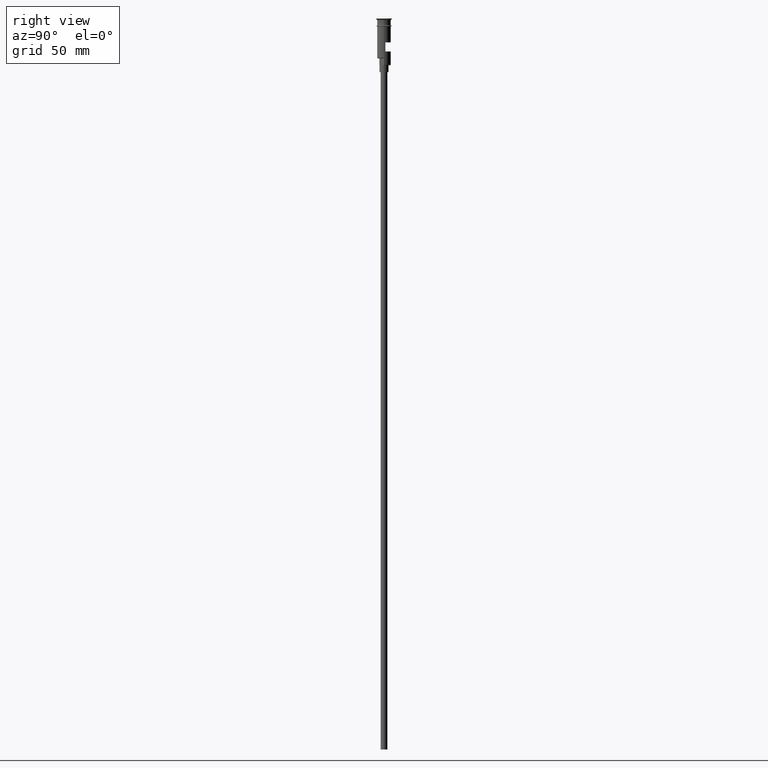
[diagram: clean part render]
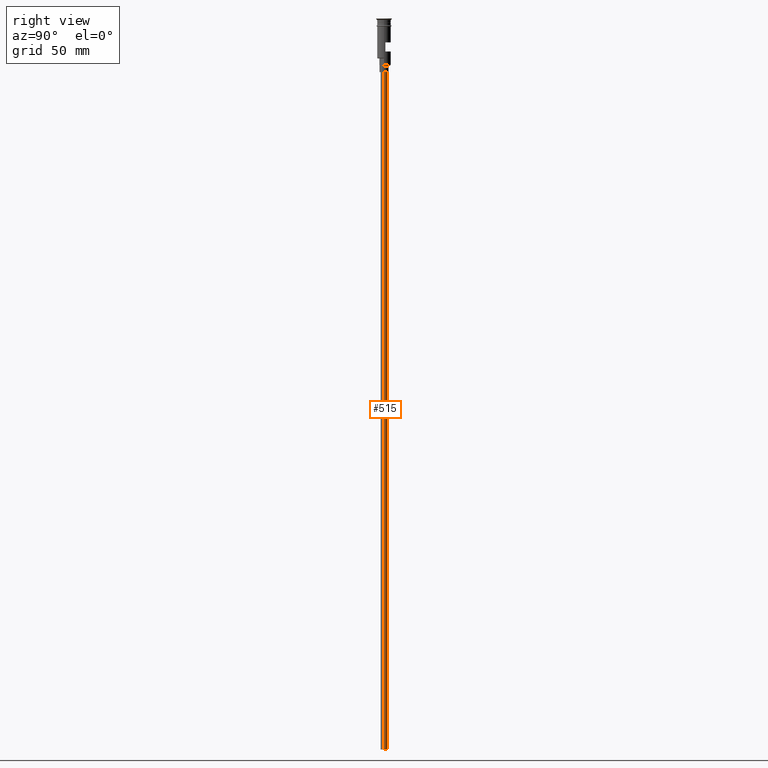
[diagram: same view with one face highlighted and labeled with its STEP entity id]
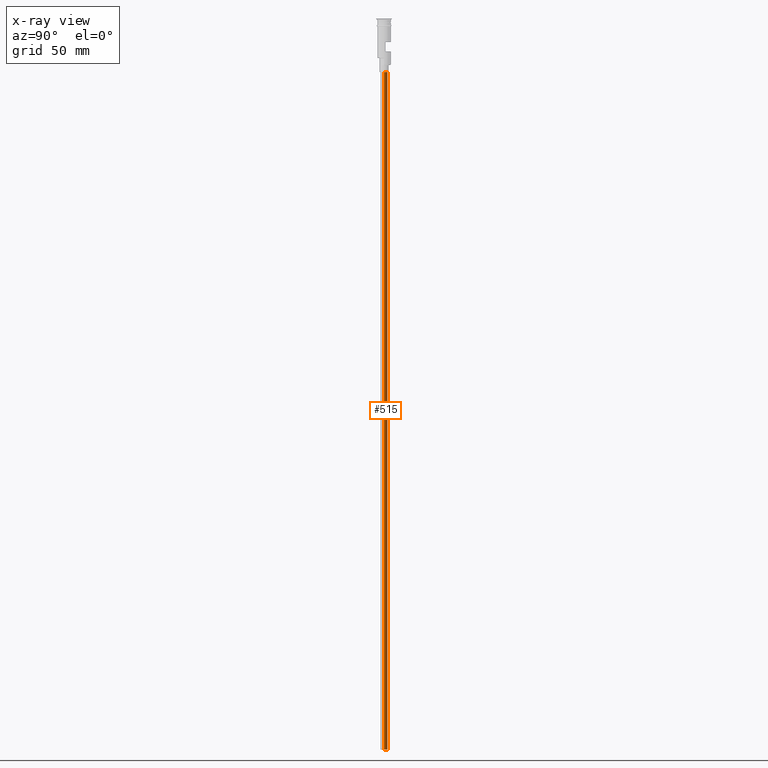
[diagram: x-ray of the same camera — body ghosted, the highlighted face saturated]
A machine part, right view. The second image highlights one B-rep face of the part: STEP entity #515.
The next image is the same camera in x-ray: the body ghosted, the highlighted face saturated — about 0% of this face is hidden behind the body in this view.
In plain terms, the highlighted cylindrical surface (edge-blend (fillet) strip) has radius 1.5 mm, axis along (-0, -0, 1).
Its self-contained STEP definition (entity closure, byte-faithful):
#49 = VERTEX_POINT ( 'NONE', #704 ) ;
#60 = LINE ( 'NONE', #1354, #693 ) ;
#82 = CYLINDRICAL_SURFACE ( 'NONE', #528, 1.500000000000000222 ) ;
#130 = EDGE_CURVE ( 'NONE', #49, #1293, #1306, .T. ) ;
#146 = ORIENTED_EDGE ( 'NONE', *, *, #130, .F. ) ;
#147 = AXIS2_PLACEMENT_3D ( 'NONE', #604, #1200, #1444 ) ;
#183 = EDGE_CURVE ( 'NONE', #411, #734, #60, .T. ) ;
#185 = FACE_OUTER_BOUND ( 'NONE', #1140, .T. ) ;
#206 = ORIENTED_EDGE ( 'NONE', *, *, #183, .T. ) ;
#211 = DIRECTION ( 'NONE',  ( -1.000000000000000000, 0.000000000000000000, 0.000000000000000000 ) ) ;
#282 = CARTESIAN_POINT ( 'NONE',  ( -1.500000000000000222, 1.836970198721030181E-16, -23.50000000000000000 ) ) ;
#411 = VERTEX_POINT ( 'NONE', #1509 ) ;
#437 = CARTESIAN_POINT ( 'NONE',  ( 1.500000000000000222, 0.000000000000000000, -23.50000000000000000 ) ) ;
#484 = DIRECTION ( 'NONE',  ( -0.000000000000000000, -0.000000000000000000, 1.000000000000000000 ) ) ;
#501 = CIRCLE ( 'NONE', #147, 1.500000000000000222 ) ;
#515 = ADVANCED_FACE ( 'NONE', ( #185 ), #82, .T. ) ;
#528 = AXIS2_PLACEMENT_3D ( 'NONE', #1085, #819, #928 ) ;
#543 = ORIENTED_EDGE ( 'NONE', *, *, #1417, .F. ) ;
#604 = CARTESIAN_POINT ( 'NONE',  ( 0.000000000000000000, 0.000000000000000000, -23.50000000000000000 ) ) ;
#693 = VECTOR ( 'NONE', #484, 1000.000000000000000 ) ;
#704 = CARTESIAN_POINT ( 'NONE',  ( 1.500000000000000222, 0.000000000000000000, -320.5000000000000000 ) ) ;
#734 = VERTEX_POINT ( 'NONE', #282 ) ;
#819 = DIRECTION ( 'NONE',  ( -0.000000000000000000, -0.000000000000000000, 1.000000000000000000 ) ) ;
#883 = AXIS2_PLACEMENT_3D ( 'NONE', #960, #965, #211 ) ;
#885 = EDGE_CURVE ( 'NONE', #734, #1293, #501, .T. ) ;
#923 = VECTOR ( 'NONE', #1563, 1000.000000000000000 ) ;
#928 = DIRECTION ( 'NONE',  ( 1.000000000000000000, 0.000000000000000000, 0.000000000000000000 ) ) ;
#959 = CARTESIAN_POINT ( 'NONE',  ( 1.500000000000000222, 0.000000000000000000, -320.5000000000000000 ) ) ;
#960 = CARTESIAN_POINT ( 'NONE',  ( 0.000000000000000000, 0.000000000000000000, -320.5000000000000000 ) ) ;
#965 = DIRECTION ( 'NONE',  ( 0.000000000000000000, 0.000000000000000000, -1.000000000000000000 ) ) ;
#1085 = CARTESIAN_POINT ( 'NONE',  ( 0.000000000000000000, 0.000000000000000000, -320.5000000000000000 ) ) ;
#1140 = EDGE_LOOP ( 'NONE', ( #543, #206, #1248, #146 ) ) ;
#1200 = DIRECTION ( 'NONE',  ( 0.000000000000000000, 0.000000000000000000, -1.000000000000000000 ) ) ;
#1248 = ORIENTED_EDGE ( 'NONE', *, *, #885, .T. ) ;
#1293 = VERTEX_POINT ( 'NONE', #437 ) ;
#1306 = LINE ( 'NONE', #959, #923 ) ;
#1354 = CARTESIAN_POINT ( 'NONE',  ( -1.500000000000000222, 1.836970198721030181E-16, -320.5000000000000000 ) ) ;
#1417 = EDGE_CURVE ( 'NONE', #411, #49, #1595, .T. ) ;
#1444 = DIRECTION ( 'NONE',  ( -1.000000000000000000, 0.000000000000000000, 0.000000000000000000 ) ) ;
#1509 = CARTESIAN_POINT ( 'NONE',  ( -1.500000000000000222, 1.836970198721030181E-16, -320.5000000000000000 ) ) ;
#1563 = DIRECTION ( 'NONE',  ( -0.000000000000000000, -0.000000000000000000, 1.000000000000000000 ) ) ;
#1595 = CIRCLE ( 'NONE', #883, 1.500000000000000222 ) ;